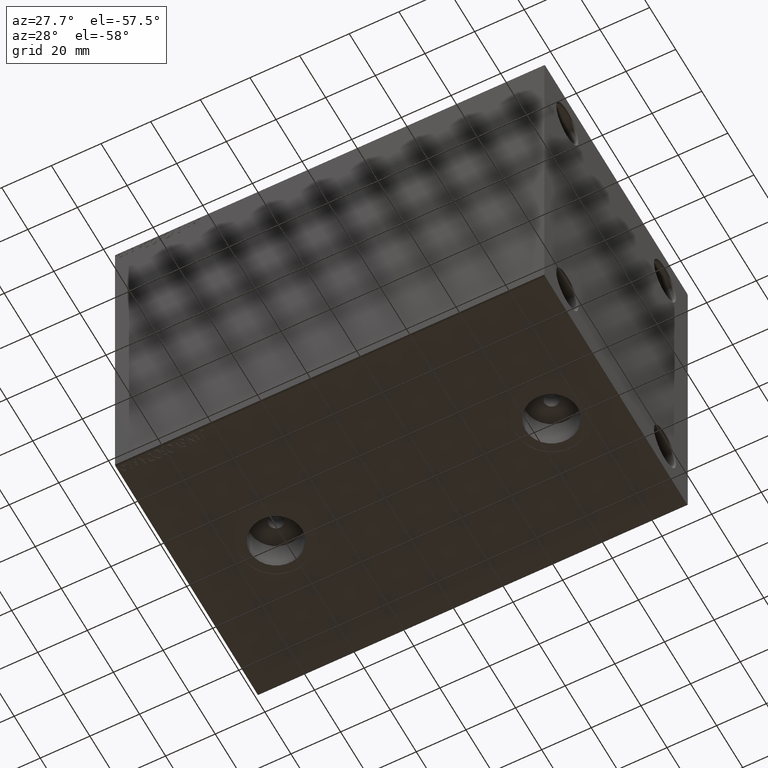
[diagram: clean part render]
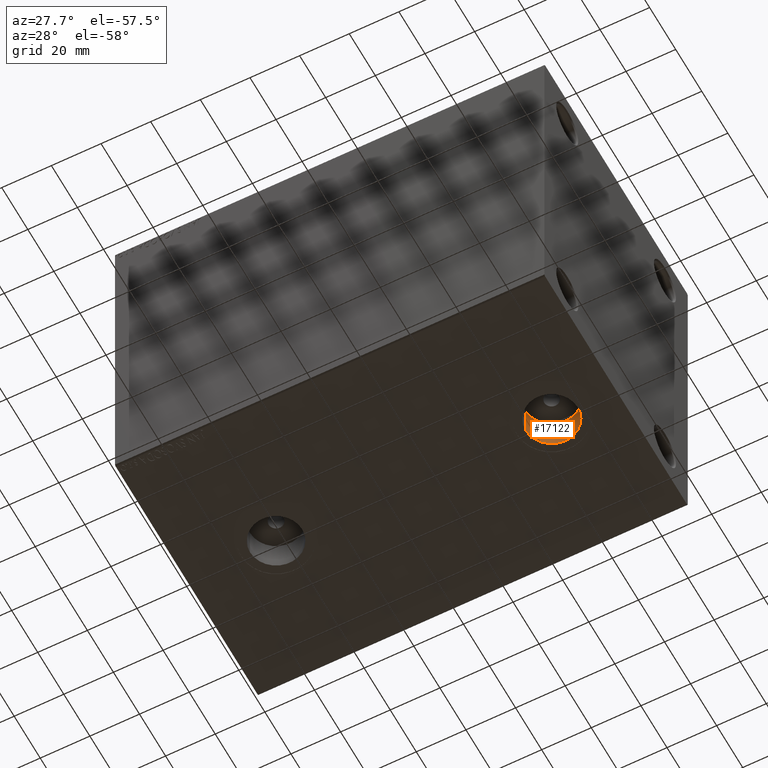
[diagram: same view with one face highlighted and labeled with its STEP entity id]
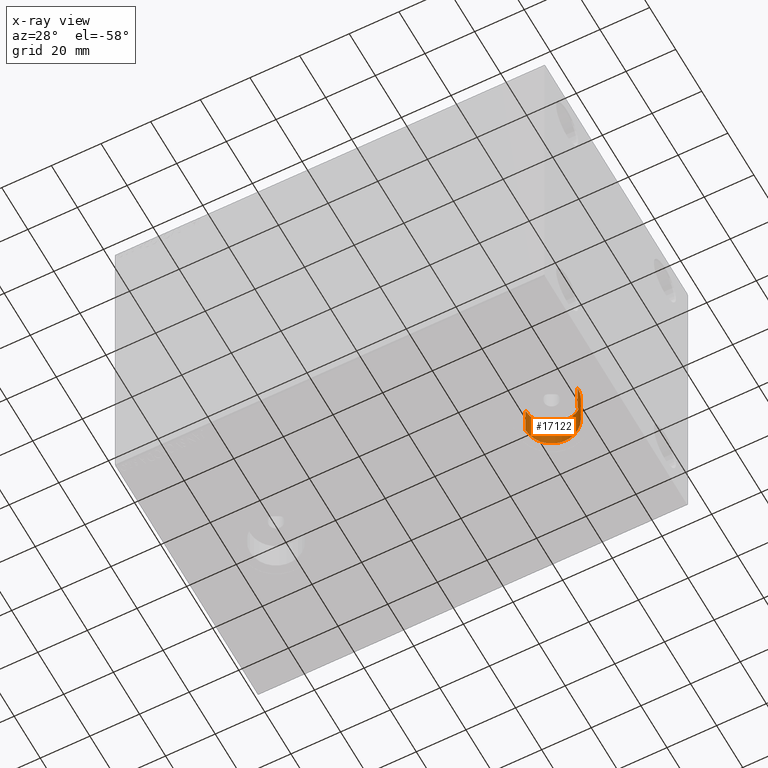
[diagram: x-ray of the same camera — body ghosted, the highlighted face saturated]
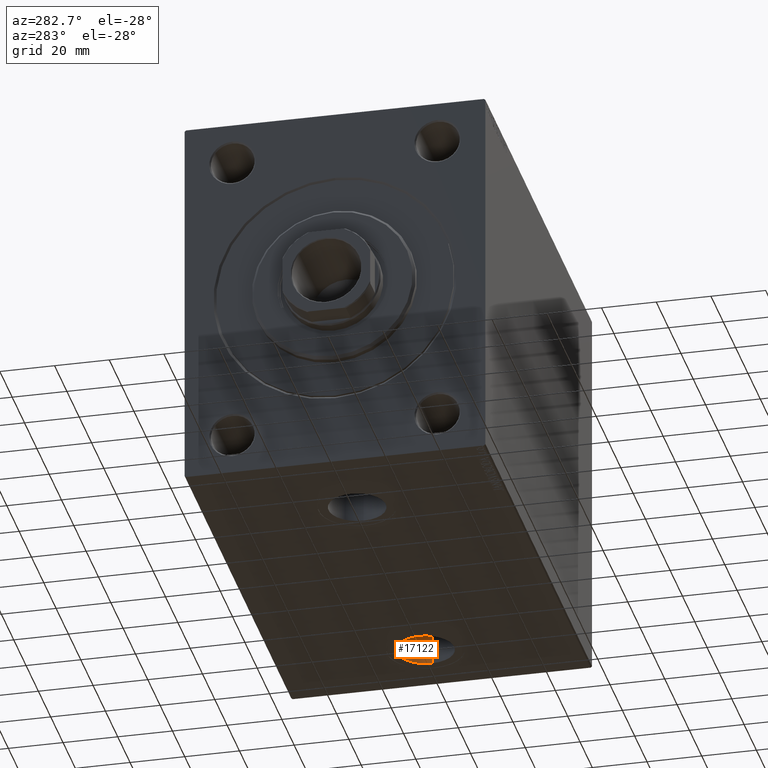
[diagram: same view with one face highlighted and labeled with its STEP entity id]
A machine part, auxiliary view. The second image highlights one B-rep face of the part: STEP entity #17122.
The next image is the same camera in x-ray: the body ghosted, the highlighted face saturated — about 0% of this face is hidden behind the body in this view.
A second angle (auxiliary view) of the same face is appended — the face is thin or edge-on in the first view.
In plain terms, the highlighted cylindrical surface (edge-blend (fillet) strip) has radius 10.48 mm, axis along (-0, -0, -1).
Its self-contained STEP definition (entity closure, byte-faithful):
#1123 = VECTOR ( 'NONE', #26111, 1000.000000000000000 ) ;
#2331 = CARTESIAN_POINT ( 'NONE',  ( 157.4800000000000182, -9.551641657521585633E-15, -57.00000000000000000 ) ) ;
#4141 = EDGE_CURVE ( 'NONE', #35909, #36743, #35648, .T. ) ;
#4547 = CARTESIAN_POINT ( 'NONE',  ( 136.5200000000000387, -1.083507150302800954E-14, -69.90000000000000568 ) ) ;
#4953 = ORIENTED_EDGE ( 'NONE', *, *, #30573, .T. ) ;
#5169 = EDGE_LOOP ( 'NONE', ( #7004, #23099, #31443, #4953 ) ) ;
#5980 = CARTESIAN_POINT ( 'NONE',  ( 157.4800000000000182, -9.551641657521585633E-15, -69.90000000000000568 ) ) ;
#7004 = ORIENTED_EDGE ( 'NONE', *, *, #37452, .F. ) ;
#9395 = DIRECTION ( 'NONE',  ( -1.000000000000000000, 0.000000000000000000, 0.000000000000000000 ) ) ;
#9565 = CARTESIAN_POINT ( 'NONE',  ( 147.0000000000000284, -1.083507150302800954E-14, -57.00000000000000000 ) ) ;
#12061 = DIRECTION ( 'NONE',  ( -0.000000000000000000, -0.000000000000000000, -1.000000000000000000 ) ) ;
#12389 = DIRECTION ( 'NONE',  ( -1.000000000000000000, 0.000000000000000000, 0.000000000000000000 ) ) ;
#13272 = CYLINDRICAL_SURFACE ( 'NONE', #41050, 10.47999999999998977 ) ;
#14070 = EDGE_CURVE ( 'NONE', #35909, #35823, #40212, .T. ) ;
#15742 = AXIS2_PLACEMENT_3D ( 'NONE', #41497, #19789, #9395 ) ;
#17122 = ADVANCED_FACE ( 'NONE', ( #19505 ), #13272, .F. ) ;
#19089 = CARTESIAN_POINT ( 'NONE',  ( 136.5200000000000387, -1.083507150302800954E-14, -57.00000000000000000 ) ) ;
#19505 = FACE_OUTER_BOUND ( 'NONE', #5169, .T. ) ;
#19789 = DIRECTION ( 'NONE',  ( 0.000000000000000000, 0.000000000000000000, -1.000000000000000000 ) ) ;
#23099 = ORIENTED_EDGE ( 'NONE', *, *, #4141, .F. ) ;
#26111 = DIRECTION ( 'NONE',  ( -0.000000000000000000, -0.000000000000000000, -1.000000000000000000 ) ) ;
#26359 = LINE ( 'NONE', #33293, #33076 ) ;
#26533 = AXIS2_PLACEMENT_3D ( 'NONE', #29931, #44029, #12389 ) ;
#27092 = VERTEX_POINT ( 'NONE', #5980 ) ;
#29931 = CARTESIAN_POINT ( 'NONE',  ( 147.0000000000000284, -1.083507150302800954E-14, -69.90000000000000568 ) ) ;
#30222 = CIRCLE ( 'NONE', #26533, 10.47999999999998977 ) ;
#30573 = EDGE_CURVE ( 'NONE', #35823, #27092, #30222, .T. ) ;
#31443 = ORIENTED_EDGE ( 'NONE', *, *, #14070, .T. ) ;
#33076 = VECTOR ( 'NONE', #12061, 1000.000000000000000 ) ;
#33293 = CARTESIAN_POINT ( 'NONE',  ( 157.4800000000000182, -9.551641657521585633E-15, -57.00000000000000000 ) ) ;
#35648 = CIRCLE ( 'NONE', #15742, 10.47999999999998977 ) ;
#35823 = VERTEX_POINT ( 'NONE', #4547 ) ;
#35909 = VERTEX_POINT ( 'NONE', #19089 ) ;
#36743 = VERTEX_POINT ( 'NONE', #2331 ) ;
#37452 = EDGE_CURVE ( 'NONE', #36743, #27092, #26359, .T. ) ;
#37965 = DIRECTION ( 'NONE',  ( -1.000000000000000000, 0.000000000000000000, 0.000000000000000000 ) ) ;
#40212 = LINE ( 'NONE', #43218, #1123 ) ;
#40757 = DIRECTION ( 'NONE',  ( -0.000000000000000000, -0.000000000000000000, -1.000000000000000000 ) ) ;
#41050 = AXIS2_PLACEMENT_3D ( 'NONE', #9565, #40757, #37965 ) ;
#41497 = CARTESIAN_POINT ( 'NONE',  ( 147.0000000000000284, -1.083507150302800954E-14, -57.00000000000000000 ) ) ;
#43218 = CARTESIAN_POINT ( 'NONE',  ( 136.5200000000000387, -1.083507150302800954E-14, -57.00000000000000000 ) ) ;
#44029 = DIRECTION ( 'NONE',  ( 0.000000000000000000, 0.000000000000000000, -1.000000000000000000 ) ) ;